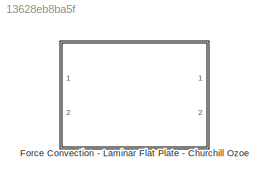
MODEL slx_13628eb8ba5f
KIND library
CONFIG AbsTol = auto
CONFIG FixedStep = auto
CONFIG MaxStep = auto
CONFIG MinStep = auto
CONFIG RelTol = 1e-3
CONFIG SampleTimeConstraint = Unconstrained
CONFIG Solver = ode45
CONFIG SolverMode = Auto
CONFIG SolverName = ode45
CONFIG StartTime = 0.0
CONFIG StopTime = 10.0
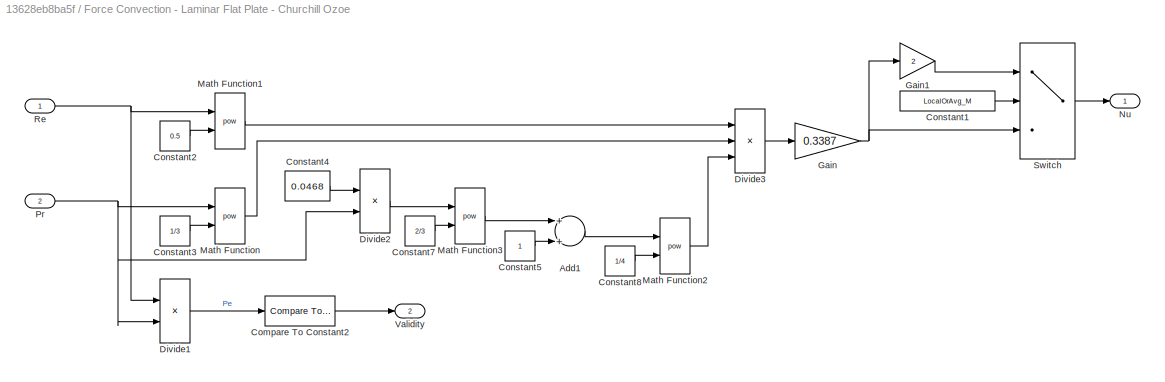
BLOCK [SubSystem] Force Convection - Laminar Flat Plate - Churchill Ozoe
  Ports = [2, 2]
  RequestExecContextInheritance = off
BLOCK [Sum] Force Convection - Laminar Flat Plate - Churchill Ozoe/Add1
  InputSameDT = off
  OutDataTypeStr = Inherit: Inherit via internal rule
  Ports = [2, 1]
  SaturateOnIntegerOverflow = off
BLOCK [Reference] Force Convection - Laminar Flat Plate - Churchill Ozoe/Compare To Constant2  REF=simulink/Logic and Bit
Operations/Compare
To Constant
  OutDataTypeStr = boolean
  Ports = [1, 1]
  SourceBlock = simulink/Logic and Bit\nOperations/Compare\nTo Constant
  SourceType = Compare To Constant
  ZeroCross = on
  const = 100
  relop = <
BLOCK [Constant] Force Convection - Laminar Flat Plate - Churchill Ozoe/Constant1
  Value = LocalOrAvg_M
BLOCK [Constant] Force Convection - Laminar Flat Plate - Churchill Ozoe/Constant2
  Value = 0.5
BLOCK [Constant] Force Convection - Laminar Flat Plate - Churchill Ozoe/Constant3
  Value = 1/3
BLOCK [Constant] Force Convection - Laminar Flat Plate - Churchill Ozoe/Constant4
  Value = 0.0468
BLOCK [Constant] Force Convection - Laminar Flat Plate - Churchill Ozoe/Constant5
BLOCK [Constant] Force Convection - Laminar Flat Plate - Churchill Ozoe/Constant7
  Value = 2/3
BLOCK [Constant] Force Convection - Laminar Flat Plate - Churchill Ozoe/Constant8
  Value = 1/4
BLOCK [Product] Force Convection - Laminar Flat Plate - Churchill Ozoe/Divide1
  InputSameDT = off
  Inputs = **
  OutDataTypeStr = Inherit: Inherit via internal rule
  Ports = [2, 1]
  RndMeth = Floor
  SaturateOnIntegerOverflow = off
BLOCK [Product] Force Convection - Laminar Flat Plate - Churchill Ozoe/Divide2
  InputSameDT = off
  Inputs = */
  OutDataTypeStr = Inherit: Inherit via internal rule
  Ports = [2, 1]
  RndMeth = Floor
  SaturateOnIntegerOverflow = off
BLOCK [Product] Force Convection - Laminar Flat Plate - Churchill Ozoe/Divide3
  InputSameDT = off
  Inputs = **/
  OutDataTypeStr = Inherit: Inherit via internal rule
  Ports = [3, 1]
  RndMeth = Floor
  SaturateOnIntegerOverflow = off
BLOCK [Gain] Force Convection - Laminar Flat Plate - Churchill Ozoe/Gain
  Gain = 0.3387
  OutDataTypeStr = Inherit: Inherit via internal rule
  ParamDataTypeStr = Inherit: Inherit via internal rule
  SaturateOnIntegerOverflow = off
BLOCK [Gain] Force Convection - Laminar Flat Plate - Churchill Ozoe/Gain1
  Gain = 2
  OutDataTypeStr = Inherit: Inherit via internal rule
  ParamDataTypeStr = Inherit: Inherit via internal rule
  SaturateOnIntegerOverflow = off
BLOCK [Math] Force Convection - Laminar Flat Plate - Churchill Ozoe/Math Function
  Operator = pow
  Ports = [2, 1]
BLOCK [Math] Force Convection - Laminar Flat Plate - Churchill Ozoe/Math Function1
  Operator = pow
  Ports = [2, 1]
BLOCK [Math] Force Convection - Laminar Flat Plate - Churchill Ozoe/Math Function2
  Operator = pow
  Ports = [2, 1]
BLOCK [Math] Force Convection - Laminar Flat Plate - Churchill Ozoe/Math Function3
  Operator = pow
  Ports = [2, 1]
BLOCK [Outport] Force Convection - Laminar Flat Plate - Churchill Ozoe/Nu
  IconDisplay = Port number
BLOCK [Inport] Force Convection - Laminar Flat Plate - Churchill Ozoe/Pr
  IconDisplay = Port number
  Port = 2
BLOCK [Inport] Force Convection - Laminar Flat Plate - Churchill Ozoe/Re
  IconDisplay = Port number
BLOCK [Switch] Force Convection - Laminar Flat Plate - Churchill Ozoe/Switch
  Criteria = u2 > Threshold
  InputSameDT = off
  SaturateOnIntegerOverflow = off
  Threshold = 1.5
BLOCK [Outport] Force Convection - Laminar Flat Plate - Churchill Ozoe/Validity
  IconDisplay = Port number
  Port = 2
LINE Force Convection - Laminar Flat Plate - Churchill Ozoe/Add1:1 -> Force Convection - Laminar Flat Plate - Churchill Ozoe/Math Function2:1
LINE Force Convection - Laminar Flat Plate - Churchill Ozoe/Compare To Constant2:1 -> Force Convection - Laminar Flat Plate - Churchill Ozoe/Validity:1
LINE Force Convection - Laminar Flat Plate - Churchill Ozoe/Constant1:1 -> Force Convection - Laminar Flat Plate - Churchill Ozoe/Switch:2
LINE Force Convection - Laminar Flat Plate - Churchill Ozoe/Constant2:1 -> Force Convection - Laminar Flat Plate - Churchill Ozoe/Math Function1:2
LINE Force Convection - Laminar Flat Plate - Churchill Ozoe/Constant3:1 -> Force Convection - Laminar Flat Plate - Churchill Ozoe/Math Function:2
LINE Force Convection - Laminar Flat Plate - Churchill Ozoe/Constant4:1 -> Force Convection - Laminar Flat Plate - Churchill Ozoe/Divide2:1
LINE Force Convection - Laminar Flat Plate - Churchill Ozoe/Constant5:1 -> Force Convection - Laminar Flat Plate - Churchill Ozoe/Add1:2
LINE Force Convection - Laminar Flat Plate - Churchill Ozoe/Constant7:1 -> Force Convection - Laminar Flat Plate - Churchill Ozoe/Math Function3:2
LINE Force Convection - Laminar Flat Plate - Churchill Ozoe/Constant8:1 -> Force Convection - Laminar Flat Plate - Churchill Ozoe/Math Function2:2
LINE Force Convection - Laminar Flat Plate - Churchill Ozoe/Divide1:1 -> Force Convection - Laminar Flat Plate - Churchill Ozoe/Compare To Constant2:1
LINE Force Convection - Laminar Flat Plate - Churchill Ozoe/Divide2:1 -> Force Convection - Laminar Flat Plate - Churchill Ozoe/Math Function3:1
LINE Force Convection - Laminar Flat Plate - Churchill Ozoe/Divide3:1 -> Force Convection - Laminar Flat Plate - Churchill Ozoe/Gain:1
LINE Force Convection - Laminar Flat Plate - Churchill Ozoe/Gain1:1 -> Force Convection - Laminar Flat Plate - Churchill Ozoe/Switch:1
NET Force Convection - Laminar Flat Plate - Churchill Ozoe/Gain:1 -> Force Convection - Laminar Flat Plate - Churchill Ozoe/Gain1:1, Force Convection - Laminar Flat Plate - Churchill Ozoe/Switch:3
LINE Force Convection - Laminar Flat Plate - Churchill Ozoe/Math Function1:1 -> Force Convection - Laminar Flat Plate - Churchill Ozoe/Divide3:1
LINE Force Convection - Laminar Flat Plate - Churchill Ozoe/Math Function2:1 -> Force Convection - Laminar Flat Plate - Churchill Ozoe/Divide3:3
LINE Force Convection - Laminar Flat Plate - Churchill Ozoe/Math Function3:1 -> Force Convection - Laminar Flat Plate - Churchill Ozoe/Add1:1
LINE Force Convection - Laminar Flat Plate - Churchill Ozoe/Math Function:1 -> Force Convection - Laminar Flat Plate - Churchill Ozoe/Divide3:2
NET Force Convection - Laminar Flat Plate - Churchill Ozoe/Pr:1 -> Force Convection - Laminar Flat Plate - Churchill Ozoe/Divide1:2, Force Convection - Laminar Flat Plate - Churchill Ozoe/Divide2:2, Force Convection - Laminar Flat Plate - Churchill Ozoe/Math Function:1
NET Force Convection - Laminar Flat Plate - Churchill Ozoe/Re:1 -> Force Convection - Laminar Flat Plate - Churchill Ozoe/Divide1:1, Force Convection - Laminar Flat Plate - Churchill Ozoe/Math Function1:1
LINE Force Convection - Laminar Flat Plate - Churchill Ozoe/Switch:1 -> Force Convection - Laminar Flat Plate - Churchill Ozoe/Nu:1
note: NET lines group one-source signal fan-out (src -> all destinations, sorted); 1:1 wires keep LINE
